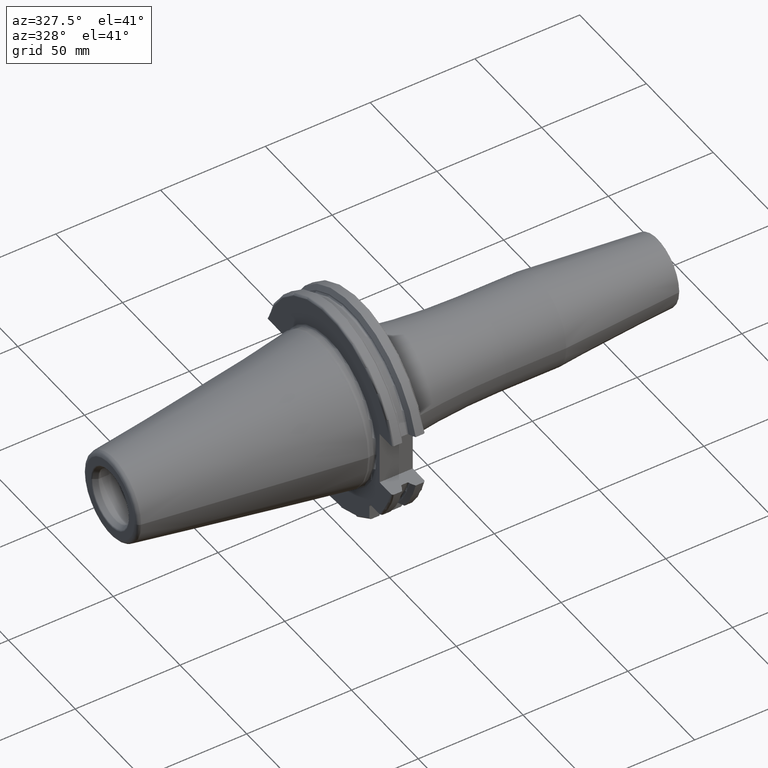
[diagram: clean part render]
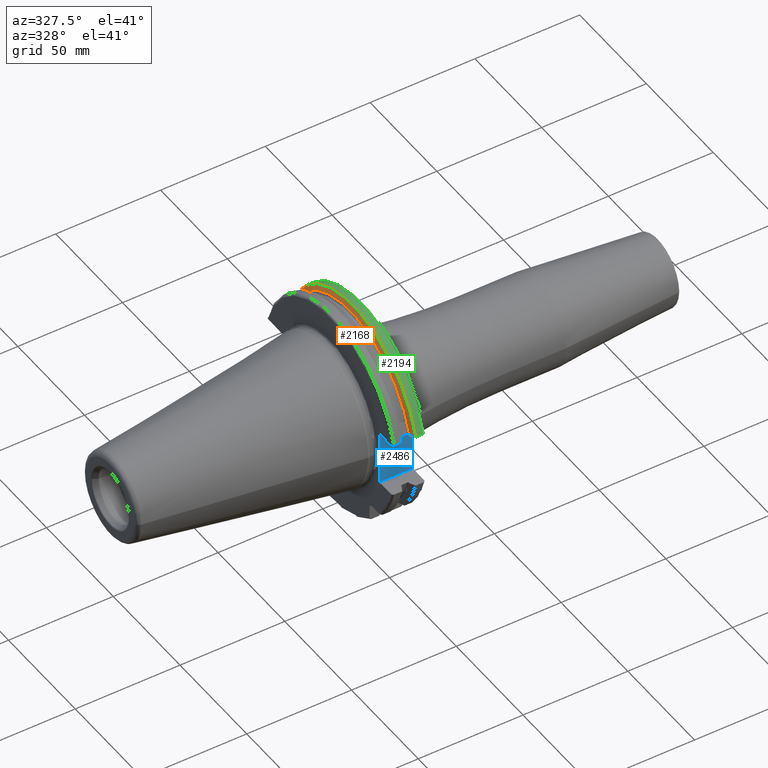
[diagram: same view with three faces highlighted in distinct colors, each labeled with its STEP entity id]
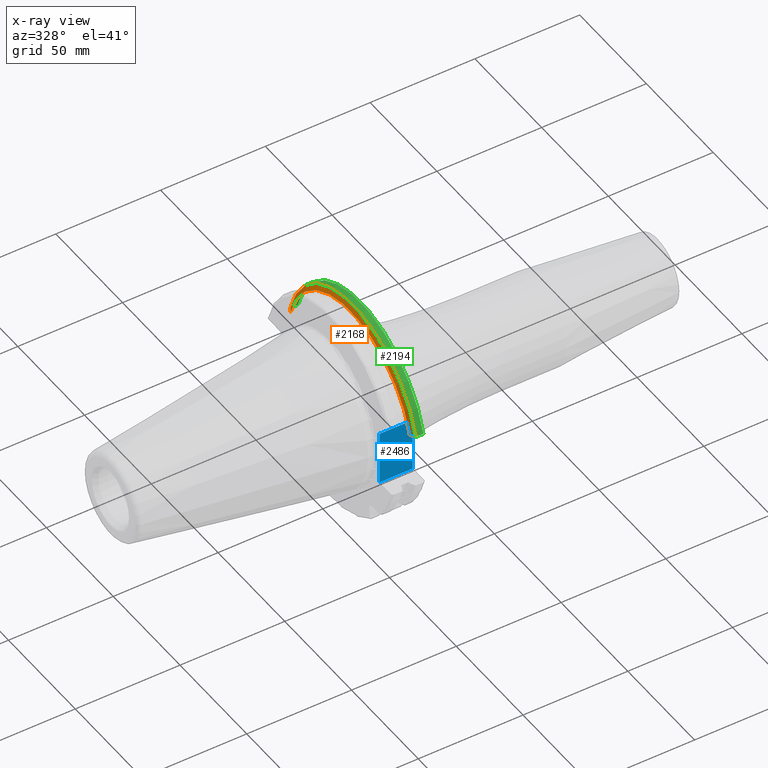
[diagram: x-ray of the same camera — body ghosted, the three highlighted faces saturated]
A machine part, auxiliary view with three faces highlighted in distinct colors.
The next image is the same camera in x-ray (body ghosted, the three faces saturated) — at least one of them is partly hidden behind the body in this view.
Their STEP definitions:

[orange] entity #2168 — the highlighted conical surface has half-angle 60 deg.
#477=CARTESIAN_POINT('',(1.441537838583E1,4.699929686974E1,1.29E1));
#478=CARTESIAN_POINT('',(1.426451908496E1,4.672833723043E1,1.29E1));
#479=CARTESIAN_POINT('',(1.396501135619E1,4.619006057422E1,1.29E1));
#480=CARTESIAN_POINT('',(1.352242021955E1,4.539363402665E1,1.29E1));
#481=CARTESIAN_POINT('',(1.323173924582E1,4.486988275438E1,1.29E1));
#482=CARTESIAN_POINT('',(1.30875E1,4.460981716077E1,1.29E1));
#484=CARTESIAN_POINT('',(1.30875E1,-4.460981716077E1,1.29E1));
#485=CARTESIAN_POINT('',(1.323171622645E1,-4.486984125009E1,1.29E1));
#486=CARTESIAN_POINT('',(1.352236645045E1,-4.539353719098E1,1.29E1));
#487=CARTESIAN_POINT('',(1.396495664446E1,-4.618996220278E1,1.29E1));
#488=CARTESIAN_POINT('',(1.426449561388E1,-4.672829507383E1,1.29E1));
#489=CARTESIAN_POINT('',(1.441537838583E1,-4.699929686974E1,1.29E1));
#491=CARTESIAN_POINT('',(1.30875E1,0.E0,0.E0));
#492=DIRECTION('',(1.E0,0.E0,0.E0));
#493=DIRECTION('',(0.E0,9.606411165078E-1,2.777924499957E-1));
#494=AXIS2_PLACEMENT_3D('',#491,#492,#493);
#522=CARTESIAN_POINT('',(1.441537838583E1,0.E0,0.E0));
#523=DIRECTION('',(1.E0,0.E0,0.E0));
#524=DIRECTION('',(0.E0,9.643354064066E-1,2.646832521159E-1));
#525=AXIS2_PLACEMENT_3D('',#522,#523,#524);
#1340=CARTESIAN_POINT('',(1.30875E1,4.460981716077E1,1.29E1));
#1341=VERTEX_POINT('',#1340);
#1350=CARTESIAN_POINT('',(1.30875E1,-4.460981716077E1,1.29E1));
#1351=VERTEX_POINT('',#1350);
#1352=VERTEX_POINT('',#477);
#1353=VERTEX_POINT('',#489);
#2156=CARTESIAN_POINT('',(1.375143919291E1,0.E0,0.E0));
#2157=DIRECTION('',(1.E0,0.E0,0.E0));
#2158=DIRECTION('',(0.E0,-1.E0,0.E0));
#2159=AXIS2_PLACEMENT_3D('',#2156,#2157,#2158);
#2160=CONICAL_SURFACE('',#2159,4.758752358474E1,6.E1);
#2161=ORIENTED_EDGE('',*,*,#2013,.F.);
#2163=ORIENTED_EDGE('',*,*,#2162,.T.);
#2164=ORIENTED_EDGE('',*,*,#2054,.F.);
#2165=ORIENTED_EDGE('',*,*,#2118,.F.);
#2166=EDGE_LOOP('',(#2161,#2163,#2164,#2165));
#2167=FACE_OUTER_BOUND('',#2166,.F.);
#2168=ADVANCED_FACE('',(#2167),#2160,.T.);
#483=B_SPLINE_CURVE_WITH_KNOTS('',3,(#477,#478,#479,#480,#481,#482),
.UNSPECIFIED.,.F.,.F.,(4,1,1,4),(0.E0,3.333333333333E-1,6.666666666667E-1,1.E0),
.UNSPECIFIED.);
#490=B_SPLINE_CURVE_WITH_KNOTS('',3,(#484,#485,#486,#487,#488,#489),
.UNSPECIFIED.,.F.,.F.,(4,1,1,4),(0.E0,3.333333333333E-1,6.666666666667E-1,1.E0),
.UNSPECIFIED.);
#495=CIRCLE('',#494,4.643754716948E1);
#526=CIRCLE('',#525,4.87375E1);
#2013=EDGE_CURVE('',#1352,#1341,#483,.T.);
#2054=EDGE_CURVE('',#1351,#1353,#490,.T.);
#2118=EDGE_CURVE('',#1341,#1351,#495,.T.);
#2162=EDGE_CURVE('',#1352,#1353,#526,.T.);

[blue] entity #2486 — the highlighted planar face has unit normal (0, 1, 0).
#151=DIRECTION('',(0.E0,0.E0,1.E0));
#152=VECTOR('',#151,2.58E1);
#153=CARTESIAN_POINT('',(1.905E1,-3.75E1,-1.29E1));
#154=LINE('',#153,#152);
#367=DIRECTION('',(-1.E0,0.E0,0.E0));
#368=VECTOR('',#367,1.585E1);
#369=CARTESIAN_POINT('',(1.905E1,-3.75E1,1.29E1));
#370=LINE('',#369,#368);
#592=DIRECTION('',(0.E0,0.E0,1.E0));
#593=VECTOR('',#592,2.58E1);
#594=CARTESIAN_POINT('',(3.2E0,-3.75E1,-1.29E1));
#595=LINE('',#594,#593);
#819=DIRECTION('',(-1.E0,0.E0,0.E0));
#820=VECTOR('',#819,1.585E1);
#821=CARTESIAN_POINT('',(1.905E1,-3.75E1,-1.29E1));
#822=LINE('',#821,#820);
#1375=CARTESIAN_POINT('',(1.905E1,-3.75E1,-1.29E1));
#1377=VERTEX_POINT('',#1375);
#1378=CARTESIAN_POINT('',(1.905E1,-3.75E1,1.29E1));
#1379=VERTEX_POINT('',#1378);
#1403=CARTESIAN_POINT('',(3.2E0,-3.75E1,-1.29E1));
#1405=VERTEX_POINT('',#1403);
#1406=CARTESIAN_POINT('',(3.2E0,-3.75E1,1.29E1));
#1407=VERTEX_POINT('',#1406);
#2475=CARTESIAN_POINT('',(1.905E1,-3.75E1,-1.29E1));
#2476=DIRECTION('',(0.E0,1.E0,0.E0));
#2477=DIRECTION('',(0.E0,0.E0,1.E0));
#2478=AXIS2_PLACEMENT_3D('',#2475,#2476,#2477);
#2479=PLANE('',#2478);
#2480=ORIENTED_EDGE('',*,*,#1702,.F.);
#2481=ORIENTED_EDGE('',*,*,#2434,.T.);
#2482=ORIENTED_EDGE('',*,*,#2230,.T.);
#2483=ORIENTED_EDGE('',*,*,#2061,.F.);
#2484=EDGE_LOOP('',(#2480,#2481,#2482,#2483));
#2485=FACE_OUTER_BOUND('',#2484,.F.);
#2486=ADVANCED_FACE('',(#2485),#2479,.F.);
#1702=EDGE_CURVE('',#1377,#1379,#154,.T.);
#2061=EDGE_CURVE('',#1379,#1407,#370,.T.);
#2230=EDGE_CURVE('',#1405,#1407,#595,.T.);
#2434=EDGE_CURVE('',#1377,#1405,#822,.T.);

[green] entity #2194 — the highlighted cylindrical surface (partial cylindrical patch) has radius 48.7375 mm, axis along (1, 0, 0).
#477=CARTESIAN_POINT('',(1.441537838583E1,4.699929686974E1,1.29E1));
#489=CARTESIAN_POINT('',(1.441537838583E1,-4.699929686974E1,1.29E1));
#509=DIRECTION('',(1.E0,0.E0,0.E0));
#510=VECTOR('',#509,3.634621614173E0);
#511=CARTESIAN_POINT('',(1.441537838583E1,4.699929686974E1,1.29E1));
#512=LINE('',#511,#510);
#513=CARTESIAN_POINT('',(1.805E1,0.E0,0.E0));
#514=DIRECTION('',(1.E0,0.E0,0.E0));
#515=DIRECTION('',(0.E0,9.643354064066E-1,2.646832521159E-1));
#516=AXIS2_PLACEMENT_3D('',#513,#514,#515);
#518=DIRECTION('',(1.E0,0.E0,0.E0));
#519=VECTOR('',#518,3.634621614173E0);
#520=CARTESIAN_POINT('',(1.441537838583E1,-4.699929686974E1,1.29E1));
#521=LINE('',#520,#519);
#522=CARTESIAN_POINT('',(1.441537838583E1,0.E0,0.E0));
#523=DIRECTION('',(1.E0,0.E0,0.E0));
#524=DIRECTION('',(0.E0,9.643354064066E-1,2.646832521159E-1));
#525=AXIS2_PLACEMENT_3D('',#522,#523,#524);
#1352=VERTEX_POINT('',#477);
#1353=VERTEX_POINT('',#489);
#1384=CARTESIAN_POINT('',(1.805E1,4.699929686974E1,1.29E1));
#1385=VERTEX_POINT('',#1384);
#1388=CARTESIAN_POINT('',(1.805E1,-4.699929686974E1,1.29E1));
#1389=VERTEX_POINT('',#1388);
#2182=CARTESIAN_POINT('',(-1.076325E2,0.E0,0.E0));
#2183=DIRECTION('',(1.E0,0.E0,0.E0));
#2184=DIRECTION('',(0.E0,-1.E0,0.E0));
#2185=AXIS2_PLACEMENT_3D('',#2182,#2183,#2184);
#2186=CYLINDRICAL_SURFACE('',#2185,4.87375E1);
#2187=ORIENTED_EDGE('',*,*,#2011,.T.);
#2189=ORIENTED_EDGE('',*,*,#2188,.T.);
#2190=ORIENTED_EDGE('',*,*,#2056,.F.);
#2191=ORIENTED_EDGE('',*,*,#2162,.F.);
#2192=EDGE_LOOP('',(#2187,#2189,#2190,#2191));
#2193=FACE_OUTER_BOUND('',#2192,.F.);
#2194=ADVANCED_FACE('',(#2193),#2186,.T.);
#517=CIRCLE('',#516,4.87375E1);
#526=CIRCLE('',#525,4.87375E1);
#2011=EDGE_CURVE('',#1352,#1385,#512,.T.);
#2056=EDGE_CURVE('',#1353,#1389,#521,.T.);
#2162=EDGE_CURVE('',#1352,#1353,#526,.T.);
#2188=EDGE_CURVE('',#1385,#1389,#517,.T.);